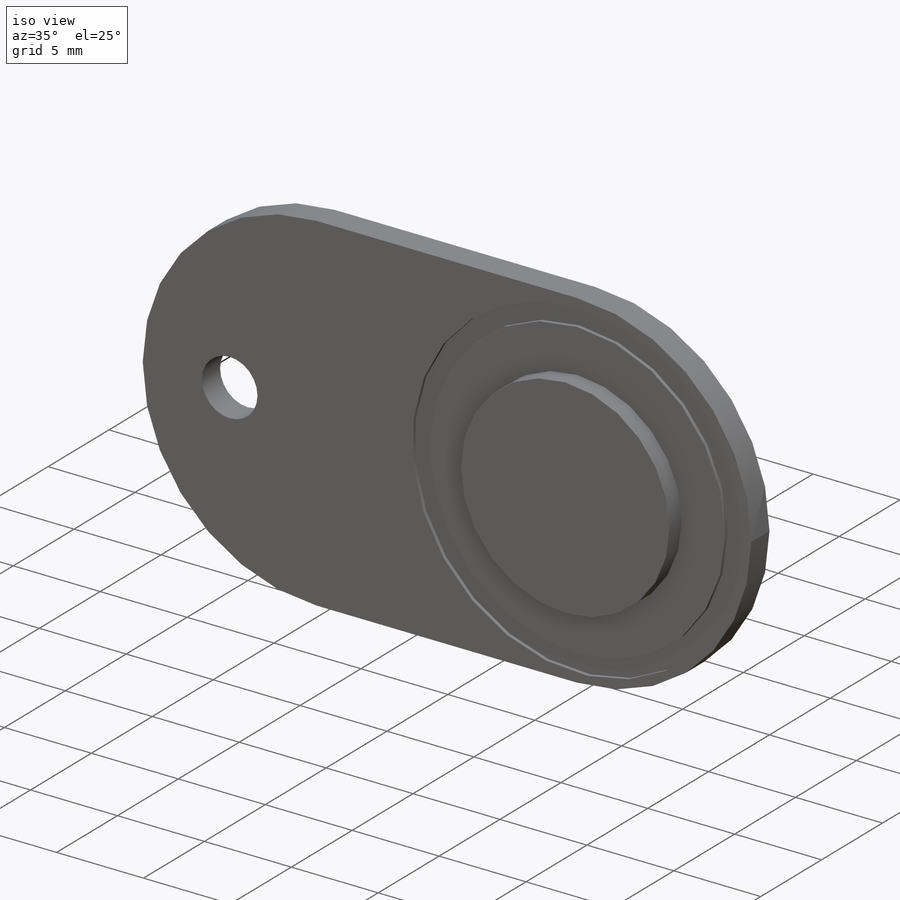
[diagram: iso view]
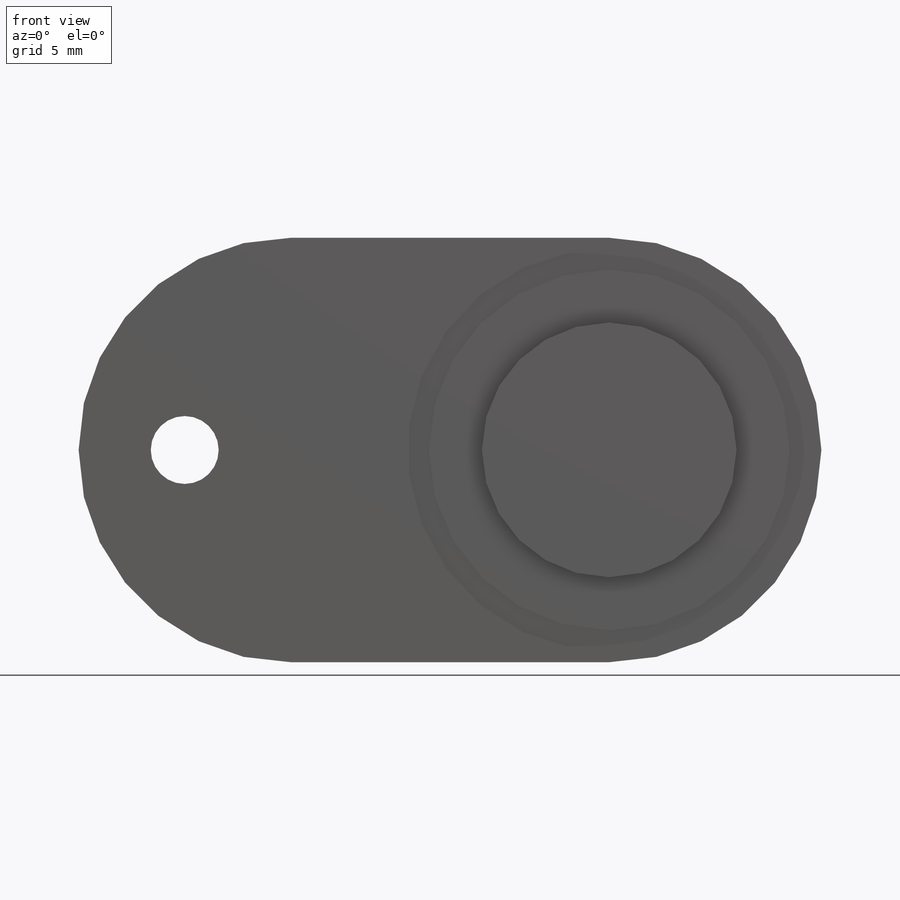
[diagram: front view]
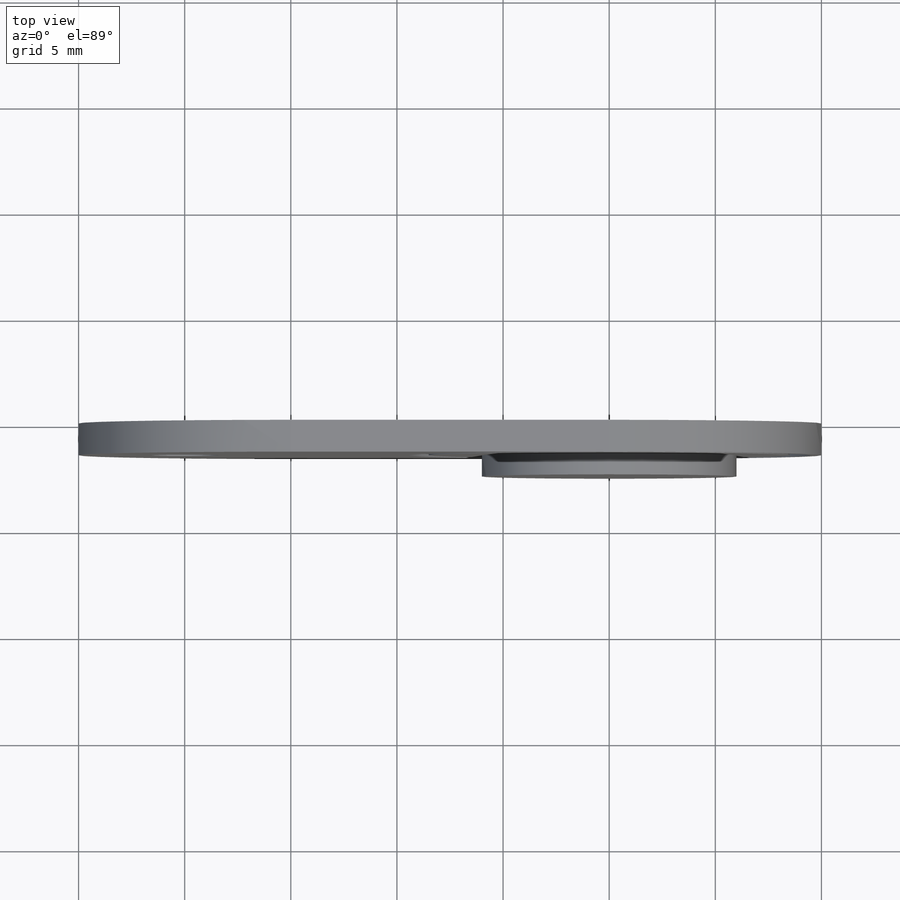
[diagram: top view]
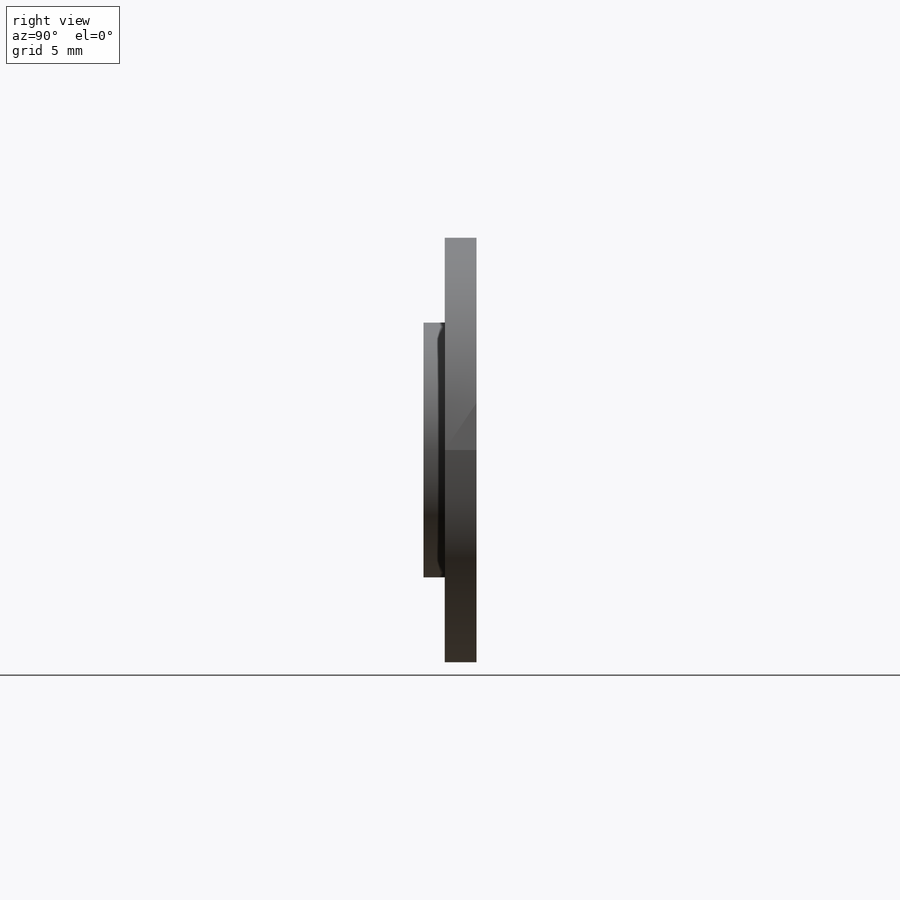
[diagram: right view]
SOLIDWORKS PART (.sldprt)
format: sldprt  version: not decoded by parser v0  size: 203,264 bytes
history: native  units: mm
features: sketch x4, extrude x2, material x1, cut_extrude x1, fillet x1 (+11 scaffold rows collapsed)
feature tree (20):
  scaffold x11  (default folders/planes/origin — collapsed)
  material  "Material <not specified>"
  sketch  "Sketch1"  dims[D1=20.0mm D2=35.0mm]
  extrude  "Boss-Extrude1"  Depth=1.5mm
  sketch  "Sketch2"  dims[D1=3.2mm D2=5.0mm]
  cut_extrude  "Cut-M3 Hole"  [1 undecoded]
  sketch  "Sketch3"  dims[D1=12.0mm D2=20.0mm]
  extrude  "Boss-FSR Boss"  Depth=1mm
  fillet  "Fillet1"  Radius=10mm
  sketch  "Sketch4"  dims[c1.D1=19.0mm c2.D1=0.2mm c2.D5=1.0mm c2.D6=10.0mm c2.D7=5.0mm]
decode coverage: 7 of 8 modeling features carry decoded parameters
note: 1 parameter value undecoded
note: suppression state not decoded; provenance and decode notes live in map.json
